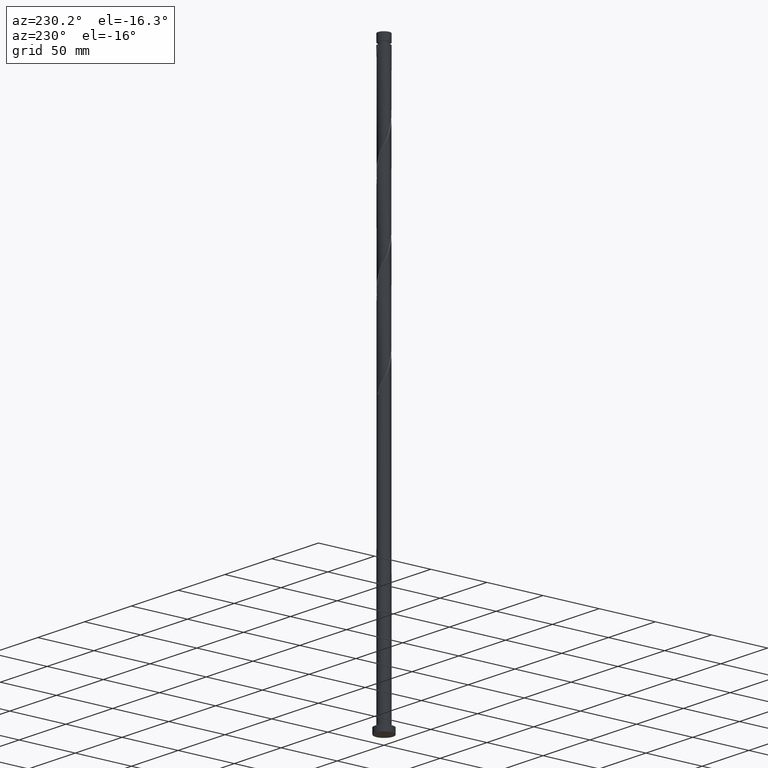
[diagram: clean part render]
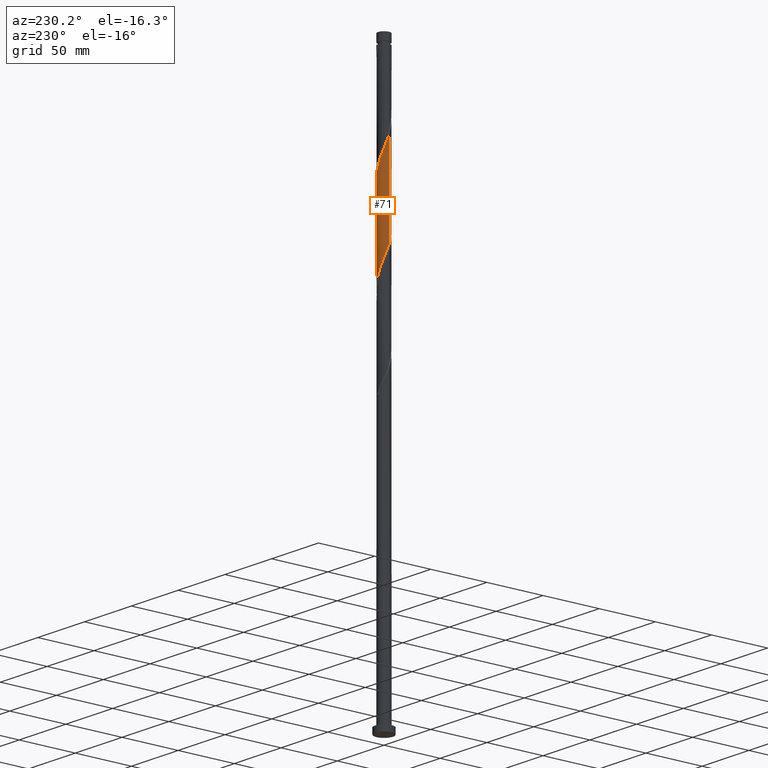
[diagram: same view with one face highlighted and labeled with its STEP entity id]
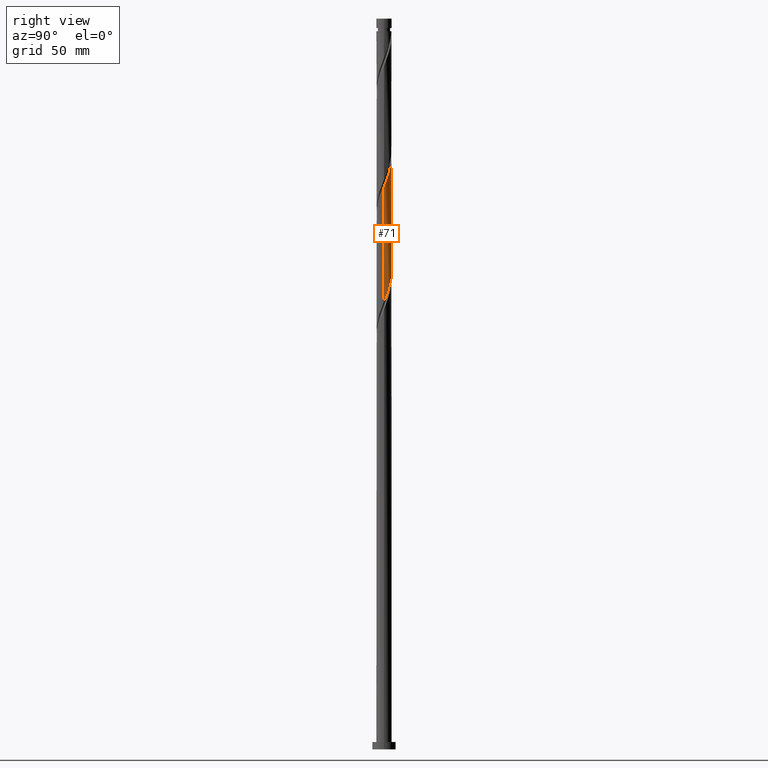
[diagram: same view with one face highlighted and labeled with its STEP entity id]
A machine part, auxiliary view. The second image highlights one B-rep face of the part: STEP entity #71.
A second angle (right view) of the same face is appended — the face is thin or edge-on in the first view.
In plain terms, the highlighted cylindrical surface (edge-blend (fillet) strip) has radius 5.25 mm, axis along (-0, -0, -1).
Its self-contained STEP definition (entity closure, byte-faithful):
#21 = CARTESIAN_POINT ( 'NONE',  ( 0.5379985386893462174, 5.247897594453547754, 326.0156674115049782 ) ) ;
#46 = CARTESIAN_POINT ( 'NONE',  ( -4.376804871376985595, 2.899323907032596903, 418.4635840781717206 ) ) ;
#55 = ORIENTED_EDGE ( 'NONE', *, *, #504, .F. ) ;
#71 = ADVANCED_FACE ( 'NONE', ( #655 ), #977, .T. ) ;
#82 = CARTESIAN_POINT ( 'NONE',  ( 4.353556726798862186, 2.934117214179496447, 392.4219174115049213 ) ) ;
#117 = CARTESIAN_POINT ( 'NONE',  ( -5.042102405546450505, 1.551475079234566179, 344.2448340781717775 ) ) ;
#149 = CARTESIAN_POINT ( 'NONE',  ( 3.727075758391648730, 3.697486482897444304, 316.9010840781716638 ) ) ;
#150 = LINE ( 'NONE', #1854, #1396 ) ;
#163 = CARTESIAN_POINT ( 'NONE',  ( 4.376804871376982931, 2.899323907032591130, 314.2969174115049782 ) ) ;
#176 = CARTESIAN_POINT ( 'NONE',  ( 5.153163662742280771, 1.003695304857282311, 309.0885840781717206 ) ) ;
#187 = CARTESIAN_POINT ( 'NONE',  ( 4.662363351767596420, 2.468246253030201842, 312.9948340781716638 ) ) ;
#192 = VERTEX_POINT ( 'NONE', #225 ) ;
#211 = CARTESIAN_POINT ( 'NONE',  ( -0.5379985386893467725, 5.247897594453554859, 406.7448340781716070 ) ) ;
#221 = CARTESIAN_POINT ( 'NONE',  ( -2.934117214179495114, 4.353556726798863963, 413.2552507448382926 ) ) ;
#225 = CARTESIAN_POINT ( 'NONE',  ( -5.250000000000007105, 4.380000364129938595E-15, 426.2233871001749321 ) ) ;
#233 = CARTESIAN_POINT ( 'NONE',  ( 1.989741939380060387, 4.858335827695750453, 400.2344174115049782 ) ) ;
#245 = CARTESIAN_POINT ( 'NONE',  ( 3.330401561034987967, 4.091246390986367665, 396.3281674115049782 ) ) ;
#248 = DIRECTION ( 'NONE',  ( -1.000000000000000000, 0.000000000000000000, 0.000000000000000000 ) ) ;
#252 = CARTESIAN_POINT ( 'NONE',  ( 5.250000000000000000, 6.429395695523604153E-16, 500.0000000000000000 ) ) ;
#285 =( BOUNDED_CURVE ( )  B_SPLINE_CURVE ( 2, ( #1589, #1060, #1557, #1548, #752, #117, #762, #1393, #1385, #594, #1881, #432, #772, #1403, #605, #1236, #1486, #1965, #996, #21, #1137, #1633, #1107, #1787, #983, #1305, #149, #846, #163, #187, #1267, #652, #176, #1280, #975 ),
 .UNSPECIFIED., .F., .T. ) 
 B_SPLINE_CURVE_WITH_KNOTS ( ( 3, 2, 2, 2, 2, 2, 2, 2, 2, 2, 2, 2, 2, 2, 2, 2, 2, 3 ),
 ( 0.6795286902180891486, 0.6796875000000000000, 0.6875000000000000000, 0.6953125000000000000, 0.7031250000000000000, 0.7109375000000000000, 0.7187500000000000000, 0.7265625000000000000, 0.7343750000000000000, 0.7421875000000000000, 0.7500000000000000000, 0.7578125000000000000, 0.7656250000000000000, 0.7734375000000000000, 0.7812500000000000000, 0.7890625000000000000, 0.7968750000000000000, 0.8045286902180871502 ),
 .UNSPECIFIED. ) 
 CURVE ( )  GEOMETRIC_REPRESENTATION_ITEM ( )  RATIONAL_B_SPLINE_CURVE ( ( 0.9089165573359513361, 0.9090019243628550960, 0.9090909090909458090, 0.9047133878838519161, 0.9090909090909458090, 0.9047133878838519161, 0.9090909090909458090, 0.9047133878838519161, 0.9090909090909458090, 0.9047133878838519161, 0.9090909090909458090, 0.9047133878838519161, 0.9090909090909458090, 0.9047133878838519161, 0.9090909090909458090, 0.9047133878838519161, 0.9090909090909458090, 0.9047133878838519161, 0.9090909090909458090, 0.9047133878838519161, 0.9090909090909458090, 0.9047133878838519161, 0.9090909090909458090, 0.9047133878838519161, 0.9090909090909458090, 0.9047133878838519161, 0.9090909090909458090, 0.9047133878838519161, 0.9090909090909458090, 0.9047133878838519161, 0.9090909090909458090, 0.9047133878838519161, 0.9090909090909458090, 0.9048023726119437393, 0.9089165573359491157 ) ) 
 REPRESENTATION_ITEM ( '' )  );
#366 = CARTESIAN_POINT ( 'NONE',  ( 5.247897594453554859, 0.5379985386893471055, 385.9115007448382926 ) ) ;
#373 = CARTESIAN_POINT ( 'NONE',  ( -1.044736808961955754, 5.145000000000004903, 408.0469174115049782 ) ) ;
#385 = CARTESIAN_POINT ( 'NONE',  ( 4.842322227192136452, 2.028402190898310309, 389.8177507448382926 ) ) ;
#406 = CARTESIAN_POINT ( 'NONE',  ( 5.249958308157117060, 0.02092277735234565963, 384.6094174115049782 ) ) ;
#432 = CARTESIAN_POINT ( 'NONE',  ( -3.330401561034982638, 4.091246390986364112, 336.4323340781717206 ) ) ;
#501 = CARTESIAN_POINT ( 'NONE',  ( 0.000000000000000000, 0.000000000000000000, 500.0000000000000000 ) ) ;
#503 = CARTESIAN_POINT ( 'NONE',  ( 5.250000000000000000, 3.394034324715177098E-15, 306.5371143895018804 ) ) ;
#504 = EDGE_CURVE ( 'NONE', #729, #1374, #285, .T. ) ;
#523 = CARTESIAN_POINT ( 'NONE',  ( 4.064571404759911744, 3.362905125796937789, 393.7240007448383494 ) ) ;
#535 = CARTESIAN_POINT ( 'NONE',  ( -5.153163662742290541, 1.003695304857283421, 423.6719174115050919 ) ) ;
#543 = LINE ( 'NONE', #252, #1329 ) ;
#566 = CARTESIAN_POINT ( 'NONE',  ( -0.02092277735234544106, 5.249958308157117060, 405.4427507448382926 ) ) ;
#594 = CARTESIAN_POINT ( 'NONE',  ( -4.064571404759904638, 3.362905125796934680, 339.0365007448384063 ) ) ;
#605 = CARTESIAN_POINT ( 'NONE',  ( -1.989741939380056612, 4.858335827695745124, 332.5260840781717206 ) ) ;
#652 = CARTESIAN_POINT ( 'NONE',  ( 5.054308303623891163, 1.511237625729912493, 310.3906674115049213 ) ) ;
#655 = FACE_OUTER_BOUND ( 'NONE', #1131, .T. ) ;
#662 = EDGE_CURVE ( 'NONE', #711, #192, #929, .T. ) ;
#700 = CARTESIAN_POINT ( 'NONE',  ( -4.662363351767601749, 2.468246253030205395, 419.7656674115049782 ) ) ;
#711 = VERTEX_POINT ( 'NONE', #715 ) ;
#715 = CARTESIAN_POINT ( 'NONE',  ( 5.250000000000007105, -6.256877115908171132E-15, 384.5567204335081897 ) ) ;
#723 = CARTESIAN_POINT ( 'NONE',  ( -5.250000000000006217, 0.5065190283771483504, 424.9474069947586941 ) ) ;
#729 = VERTEX_POINT ( 'NONE', #732 ) ;
#732 = CARTESIAN_POINT ( 'NONE',  ( -5.250000000000000000, 2.458633991631807121E-13, 348.2037810561679407 ) ) ;
#736 = EDGE_CURVE ( 'NONE', #711, #1374, #543, .T. ) ;
#752 = CARTESIAN_POINT ( 'NONE',  ( -5.145000000000000462, 1.044736808961956642, 345.5469174115049782 ) ) ;
#762 = CARTESIAN_POINT ( 'NONE',  ( -4.842322227192129347, 2.028402190898309421, 342.9427507448383494 ) ) ;
#772 = CARTESIAN_POINT ( 'NONE',  ( -2.899323907032592462, 4.376804871376981154, 335.1302507448383494 ) ) ;
#846 = CARTESIAN_POINT ( 'NONE',  ( 4.091246390986365888, 3.330401561034980862, 315.5990007448382926 ) ) ;
#857 = CARTESIAN_POINT ( 'NONE',  ( -2.028402190898309865, 4.842322227192138229, 410.6510840781716070 ) ) ;
#865 = CARTESIAN_POINT ( 'NONE',  ( 5.250000000000007105, 0.01046143021485809559, 384.5830739880253191 ) ) ;
#875 = CARTESIAN_POINT ( 'NONE',  ( -5.250000000000006217, 4.380000364129938595E-15, 426.2233871001749321 ) ) ;
#929 =( BOUNDED_CURVE ( )  B_SPLINE_CURVE ( 2, ( #1008, #865, #406, #366, #1978, #1692, #385, #1989, #82, #523, #1654, #245, #2008, #1664, #233, #1191, #1160, #1841, #566, #211, #373, #1497, #857, #1809, #221, #1317, #1201, #1507, #46, #700, #1327, #1831, #535, #723, #875 ),
 .UNSPECIFIED., .F., .T. ) 
 B_SPLINE_CURVE_WITH_KNOTS ( ( 3, 2, 2, 2, 2, 2, 2, 2, 2, 2, 2, 2, 2, 2, 2, 2, 2, 3 ),
 ( 0.4295286902180870392, 0.4296875000000000000, 0.4375000000000000000, 0.4453125000000000000, 0.4531250000000000000, 0.4609375000000000000, 0.4687500000000000000, 0.4765625000000000000, 0.4843750000000000000, 0.4921875000000000000, 0.5000000000000000000, 0.5078125000000000000, 0.5156250000000000000, 0.5234375000000000000, 0.5312500000000000000, 0.5390625000000000000, 0.5468750000000000000, 0.5545286902180872612 ),
 .UNSPECIFIED. ) 
 CURVE ( )  GEOMETRIC_REPRESENTATION_ITEM ( )  RATIONAL_B_SPLINE_CURVE ( ( 0.9089165573359546668, 0.9090019243628595369, 0.9090909090909514711, 0.9047133878838575782, 0.9090909090909514711, 0.9047133878838575782, 0.9090909090909514711, 0.9047133878838575782, 0.9090909090909514711, 0.9047133878838575782, 0.9090909090909514711, 0.9047133878838575782, 0.9090909090909514711, 0.9047133878838575782, 0.9090909090909514711, 0.9047133878838575782, 0.9090909090909514711, 0.9047133878838575782, 0.9090909090909514711, 0.9047133878838575782, 0.9090909090909514711, 0.9047133878838575782, 0.9090909090909514711, 0.9047133878838575782, 0.9090909090909514711, 0.9047133878838575782, 0.9090909090909514711, 0.9047133878838575782, 0.9090909090909514711, 0.9047133878838575782, 0.9090909090909514711, 0.9047133878838575782, 0.9090909090909514711, 0.9048023726119494015, 0.9089165573359549999 ) ) 
 REPRESENTATION_ITEM ( '' )  );
#975 = CARTESIAN_POINT ( 'NONE',  ( 5.250000000000000000, 3.394034324715177098E-15, 306.5371143895018804 ) ) ;
#977 = CYLINDRICAL_SURFACE ( 'NONE', #1328, 5.250000000000000000 ) ;
#983 = CARTESIAN_POINT ( 'NONE',  ( 2.934117214179494226, 4.353556726798855081, 319.5052507448385199 ) ) ;
#987 = DIRECTION ( 'NONE',  ( -0.000000000000000000, -0.000000000000000000, -1.000000000000000000 ) ) ;
#996 = CARTESIAN_POINT ( 'NONE',  ( 0.02092277735234869540, 5.249958308157109954, 327.3177507448383494 ) ) ;
#999 = ORIENTED_EDGE ( 'NONE', *, *, #736, .T. ) ;
#1008 = CARTESIAN_POINT ( 'NONE',  ( 5.250000000000006217, -6.256877115908171132E-15, 384.5567204335081897 ) ) ;
#1060 = CARTESIAN_POINT ( 'NONE',  ( -5.249999999999999112, 0.01046143021500051118, 348.1774275016509250 ) ) ;
#1107 = CARTESIAN_POINT ( 'NONE',  ( 2.028402190898310309, 4.842322227192129347, 322.1094174115050919 ) ) ;
#1131 = EDGE_LOOP ( 'NONE', ( #1650, #999, #55, #1456 ) ) ;
#1137 = CARTESIAN_POINT ( 'NONE',  ( 1.044736808961957308, 5.145000000000000462, 324.7135840781717775 ) ) ;
#1160 = CARTESIAN_POINT ( 'NONE',  ( 1.003695304857286530, 5.153163662742286988, 402.8385840781716638 ) ) ;
#1181 = DIRECTION ( 'NONE',  ( -0.000000000000000000, -0.000000000000000000, -1.000000000000000000 ) ) ;
#1191 = CARTESIAN_POINT ( 'NONE',  ( 1.511237625729916711, 5.054308303623898269, 401.5365007448382926 ) ) ;
#1201 = CARTESIAN_POINT ( 'NONE',  ( -3.727075758391653615, 3.697486482897450077, 415.8594174115050350 ) ) ;
#1236 = CARTESIAN_POINT ( 'NONE',  ( -1.511237625729912715, 5.054308303623891163, 331.2240007448384063 ) ) ;
#1267 = CARTESIAN_POINT ( 'NONE',  ( 4.858335827695745124, 1.989741939380055280, 311.6927507448384631 ) ) ;
#1280 = CARTESIAN_POINT ( 'NONE',  ( 5.249999999999997335, 0.5065190283771525692, 307.8130944949178911 ) ) ;
#1305 = CARTESIAN_POINT ( 'NONE',  ( 3.362905125796934680, 4.064571404759904638, 318.2031674115049782 ) ) ;
#1317 = CARTESIAN_POINT ( 'NONE',  ( -3.362905125796937789, 4.064571404759911744, 414.5573340781716638 ) ) ;
#1327 = CARTESIAN_POINT ( 'NONE',  ( -4.858335827695750453, 1.989741939380060831, 421.0677507448384063 ) ) ;
#1328 = AXIS2_PLACEMENT_3D ( 'NONE', #501, #987, #248 ) ;
#1329 = VECTOR ( 'NONE', #1181, 1000.000000000000000 ) ;
#1374 = VERTEX_POINT ( 'NONE', #503 ) ;
#1385 = CARTESIAN_POINT ( 'NONE',  ( -4.353556726798856857, 2.934117214179492894, 340.3385840781717206 ) ) ;
#1393 = CARTESIAN_POINT ( 'NONE',  ( -4.642542048837808188, 2.505329302562051108, 341.6406674115050919 ) ) ;
#1396 = VECTOR ( 'NONE', #1498, 1000.000000000000000 ) ;
#1403 = CARTESIAN_POINT ( 'NONE',  ( -2.468246253030200510, 4.662363351767596420, 333.8281674115050919 ) ) ;
#1456 = ORIENTED_EDGE ( 'NONE', *, *, #1503, .F. ) ;
#1486 = CARTESIAN_POINT ( 'NONE',  ( -1.003695304857281201, 5.153163662742282547, 329.9219174115050919 ) ) ;
#1497 = CARTESIAN_POINT ( 'NONE',  ( -1.551475079234567733, 5.042102405546457611, 409.3490007448382926 ) ) ;
#1498 = DIRECTION ( 'NONE',  ( -0.000000000000000000, -0.000000000000000000, -1.000000000000000000 ) ) ;
#1503 = EDGE_CURVE ( 'NONE', #192, #729, #150, .T. ) ;
#1507 = CARTESIAN_POINT ( 'NONE',  ( -4.091246390986367665, 3.330401561034987967, 417.1615007448382926 ) ) ;
#1548 = CARTESIAN_POINT ( 'NONE',  ( -5.247897594453547754, 0.5379985386893459953, 346.8490007448383494 ) ) ;
#1557 = CARTESIAN_POINT ( 'NONE',  ( -5.249958308157109954, 0.02092277735234911867, 348.1510840781717206 ) ) ;
#1589 = CARTESIAN_POINT ( 'NONE',  ( -5.250000000000000000, 2.458633991631807121E-13, 348.2037810561679407 ) ) ;
#1633 = CARTESIAN_POINT ( 'NONE',  ( 1.551475079234565291, 5.042102405546450505, 323.4115007448382926 ) ) ;
#1650 = ORIENTED_EDGE ( 'NONE', *, *, #662, .F. ) ;
#1654 = CARTESIAN_POINT ( 'NONE',  ( 3.697486482897451410, 3.727075758391652283, 395.0260840781717775 ) ) ;
#1664 = CARTESIAN_POINT ( 'NONE',  ( 2.468246253030207171, 4.662363351767599084, 398.9323340781717206 ) ) ;
#1692 = CARTESIAN_POINT ( 'NONE',  ( 5.042102405546458499, 1.551475079234564847, 388.5156674115049782 ) ) ;
#1787 = CARTESIAN_POINT ( 'NONE',  ( 2.505329302562051108, 4.642542048837808188, 320.8073340781717206 ) ) ;
#1809 = CARTESIAN_POINT ( 'NONE',  ( -2.505329302562051996, 4.642542048837816182, 411.9531674115049213 ) ) ;
#1831 = CARTESIAN_POINT ( 'NONE',  ( -5.054308303623898269, 1.511237625729916711, 422.3698340781717206 ) ) ;
#1841 = CARTESIAN_POINT ( 'NONE',  ( 0.4961529839846509637, 5.252019021860680148, 404.1406674115049782 ) ) ;
#1854 = CARTESIAN_POINT ( 'NONE',  ( -5.250000000000000000, 0.000000000000000000, 500.0000000000000000 ) ) ;
#1881 = CARTESIAN_POINT ( 'NONE',  ( -3.697486482897444304, 3.727075758391649174, 337.7344174115050919 ) ) ;
#1965 = CARTESIAN_POINT ( 'NONE',  ( -0.4961529839846487988, 5.252019021860672154, 328.6198340781717775 ) ) ;
#1978 = CARTESIAN_POINT ( 'NONE',  ( 5.145000000000004903, 1.044736808961955976, 387.2135840781717206 ) ) ;
#1989 = CARTESIAN_POINT ( 'NONE',  ( 4.642542048837816182, 2.505329302562050220, 391.1198340781716070 ) ) ;
#2008 = CARTESIAN_POINT ( 'NONE',  ( 2.899323907032597347, 4.376804871376984707, 397.6302507448382926 ) ) ;